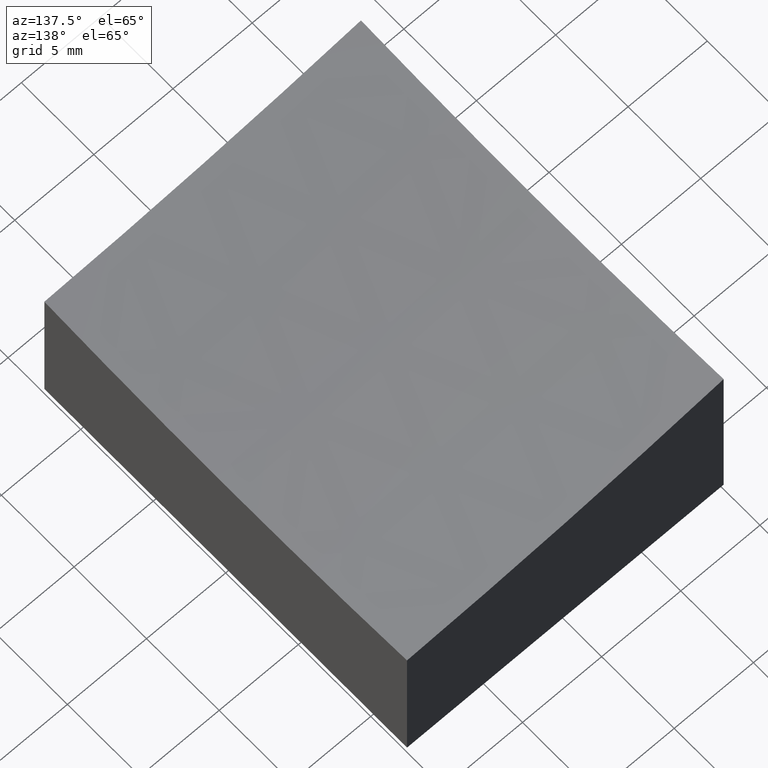
[diagram: clean part render]
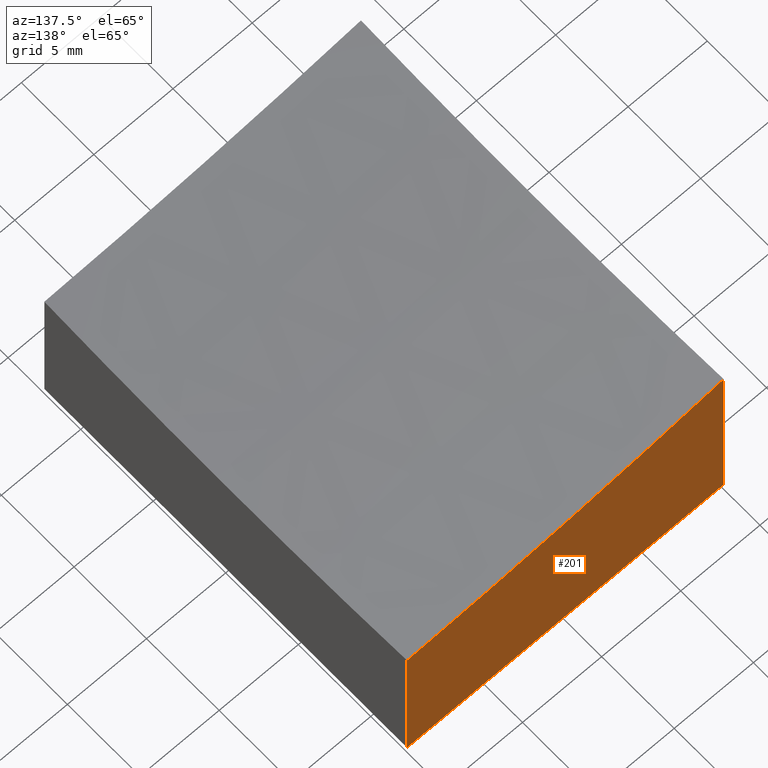
[diagram: same view with one face highlighted and labeled with its STEP entity id]
A machine part, auxiliary view. The second image highlights one B-rep face of the part: STEP entity #201.
In plain terms, the highlighted planar face has unit normal (0, -1, 0).
Its self-contained STEP definition (entity closure, byte-faithful):
#1 = CARTESIAN_POINT ( 'NONE',  ( 10.00000000000000178, 12.50000000000000000, -10.00000000000000000 ) ) ;
#15 = DIRECTION ( 'NONE',  ( 1.734723475976807094E-16, -1.000000000000000000, 0.000000000000000000 ) ) ;
#17 = LINE ( 'NONE', #1, #175 ) ;
#20 = DIRECTION ( 'NONE',  ( 1.734723475976807094E-16, -1.000000000000000000, 0.000000000000000000 ) ) ;
#22 = CARTESIAN_POINT ( 'NONE',  ( -9.999999999999998224, 12.49999999999999645, -10.00000000000000000 ) ) ;
#23 = LINE ( 'NONE', #53, #196 ) ;
#38 = CARTESIAN_POINT ( 'NONE',  ( -9.999999999999998224, 12.49999999999999645, 10.00000000000000000 ) ) ;
#53 = CARTESIAN_POINT ( 'NONE',  ( 10.00000000000000178, 12.50000000000000000, 10.00000000000000000 ) ) ;
#54 = EDGE_CURVE ( 'NONE', #156, #243, #17, .T. ) ;
#57 = CARTESIAN_POINT ( 'NONE',  ( 10.00000000000000178, 12.50000000000000000, -0.3946116832866386481 ) ) ;
#70 = EDGE_LOOP ( 'NONE', ( #236, #269, #220, #126 ) ) ;
#74 = DIRECTION ( 'NONE',  ( -0.000000000000000000, -0.000000000000000000, -1.000000000000000000 ) ) ;
#93 = FACE_OUTER_BOUND ( 'NONE', #70, .T. ) ;
#97 = CARTESIAN_POINT ( 'NONE',  ( 10.00000000000000178, 12.50000000000000000, -10.00000000000000000 ) ) ;
#103 = EDGE_CURVE ( 'NONE', #174, #176, #191, .T. ) ;
#107 = AXIS2_PLACEMENT_3D ( 'NONE', #183, #15, #249 ) ;
#114 = DIRECTION ( 'NONE',  ( -0.000000000000000000, -0.000000000000000000, -1.000000000000000000 ) ) ;
#126 = ORIENTED_EDGE ( 'NONE', *, *, #54, .T. ) ;
#137 = DIRECTION ( 'NONE',  ( 1.000000000000000000, 1.734723475976807094E-16, 0.000000000000000000 ) ) ;
#156 = VERTEX_POINT ( 'NONE', #97 ) ;
#158 = EDGE_CURVE ( 'NONE', #174, #243, #188, .T. ) ;
#161 = CARTESIAN_POINT ( 'NONE',  ( -9.999999999999996447, 12.49999999999999645, 1.627173468105036491 ) ) ;
#167 = AXIS2_PLACEMENT_3D ( 'NONE', #231, #20, #137 ) ;
#174 = VERTEX_POINT ( 'NONE', #161 ) ;
#175 = VECTOR ( 'NONE', #251, 1000.000000000000000 ) ;
#176 = VERTEX_POINT ( 'NONE', #57 ) ;
#183 = CARTESIAN_POINT ( 'NONE',  ( 15.00000000000001776, 12.50000000000000178, 149.0000000000000000 ) ) ;
#188 = LINE ( 'NONE', #38, #219 ) ;
#191 = CIRCLE ( 'NONE', #107, 149.4782592887674753 ) ;
#196 = VECTOR ( 'NONE', #74, 1000.000000000000000 ) ;
#201 = ADVANCED_FACE ( 'NONE', ( #93 ), #271, .F. ) ;
#211 = EDGE_CURVE ( 'NONE', #176, #156, #23, .T. ) ;
#219 = VECTOR ( 'NONE', #114, 1000.000000000000000 ) ;
#220 = ORIENTED_EDGE ( 'NONE', *, *, #211, .T. ) ;
#231 = CARTESIAN_POINT ( 'NONE',  ( 10.00000000000000178, 12.50000000000000000, 10.00000000000000000 ) ) ;
#236 = ORIENTED_EDGE ( 'NONE', *, *, #158, .F. ) ;
#243 = VERTEX_POINT ( 'NONE', #22 ) ;
#249 = DIRECTION ( 'NONE',  ( 1.000000000000000000, 1.740778375628798863E-16, 0.000000000000000000 ) ) ;
#251 = DIRECTION ( 'NONE',  ( -1.000000000000000000, -1.734723475976807094E-16, 0.000000000000000000 ) ) ;
#269 = ORIENTED_EDGE ( 'NONE', *, *, #103, .T. ) ;
#271 = PLANE ( 'NONE',  #167 ) ;